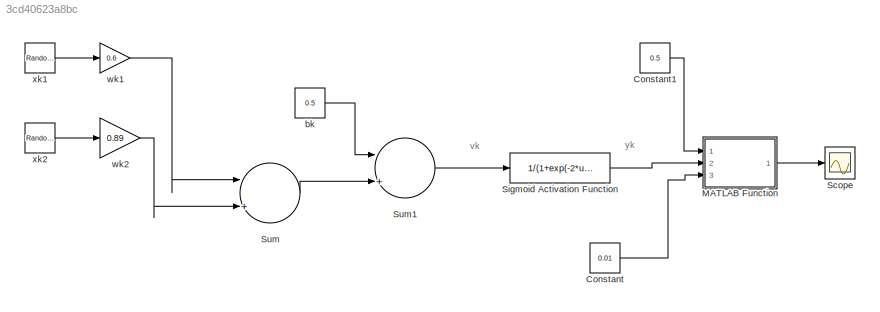
MODEL slx_3cd40623a8bc
KIND model
BLOCK [Constant] Constant
  Value = 0.01
BLOCK [Constant] Constant1
  Value = 0.5
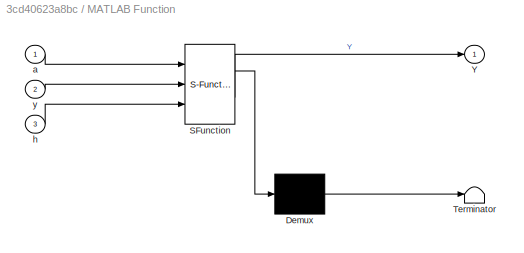
BLOCK [SubSystem] MATLAB Function
  ErrorFcn = Stateflow.Translate.translate
  FunctionWithSeparateData = off
  MaskHideContents = off
  MinAlgLoopOccurrences = off
  Opaque = off
  PermitHierarchicalResolution = ExplicitOnly
  Ports = [3, 1]
  PropExecContextOutsideSubsystem = off
  RTWSystemCode = Auto
  RequestExecContextInheritance = off
  SFBlockType = MATLAB Function
  TreatAsAtomicUnit = on
BLOCK [Demux] MATLAB Function/ Demux 
  Outputs = 1
  Ports = [1, 1]
BLOCK [S-Function] MATLAB Function/ SFunction 
  EnableBusSupport = off
  FunctionName = sf_sfun
  PortCounts = [3 2]
  Ports = [3, 2]
  Tag = Stateflow S-Function MPModel_gl 2
BLOCK [Terminator] MATLAB Function/ Terminator 
BLOCK [Outport] MATLAB Function/Y
  IconDisplay = Port number
BLOCK [Inport] MATLAB Function/a
  IconDisplay = Port number
BLOCK [Inport] MATLAB Function/h
  IconDisplay = Port number
  Port = 3
BLOCK [Inport] MATLAB Function/y
  IconDisplay = Port number
  Port = 2
BLOCK [Scope] Scope
  DataFormat = StructureWithTime
  Floating = off
  NumInputPorts = 1
  Ports = [1]
  SampleTime = 0
  ShowLegends = off
BLOCK [Fcn] Sigmoid Activation Function
  Expr = 1/(1+exp(-2*u))
BLOCK [Sum] Sum
  InputSameDT = off
  Inputs = |++
  OutDataTypeStr = Inherit: Inherit via internal rule
  Ports = [2, 1]
  SaturateOnIntegerOverflow = off
BLOCK [Sum] Sum1
  InputSameDT = off
  Inputs = |++
  OutDataTypeStr = Inherit: Inherit via internal rule
  Ports = [2, 1]
  SaturateOnIntegerOverflow = off
BLOCK [Constant] bk
  Value = 0.5
BLOCK [Gain] wk1
  Gain = 0.6
  OutDataTypeStr = Inherit: Inherit via internal rule
  ParamDataTypeStr = Inherit: Inherit via internal rule
  SaturateOnIntegerOverflow = off
BLOCK [Gain] wk2
  Gain = 0.89
  OutDataTypeStr = Inherit: Inherit via internal rule
  ParamDataTypeStr = Inherit: Inherit via internal rule
  SaturateOnIntegerOverflow = off
BLOCK [RandomNumber] xk1
  SampleTime = 0
BLOCK [RandomNumber] xk2
  SampleTime = 0
ANNOTATION (root): vk
ANNOTATION (root): yk
LINE Constant1:1 -> MATLAB Function:1
LINE Constant:1 -> MATLAB Function:3
LINE MATLAB Function:1 -> Scope:1
LINE Sigmoid Activation Function:1 -> MATLAB Function:2
LINE Sum1:1 -> Sigmoid Activation Function:1
LINE Sum:1 -> Sum1:2
LINE bk:1 -> Sum1:1
LINE wk1:1 -> Sum:1
LINE wk2:1 -> Sum:2
LINE xk1:1 -> wk1:1
LINE xk2:1 -> wk2:1
